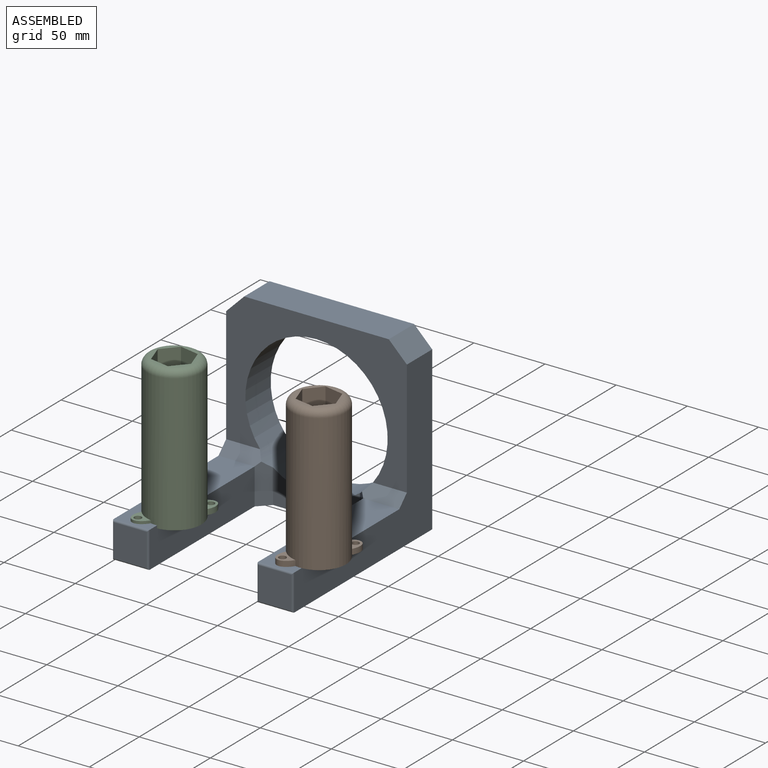
[diagram: assembled view]
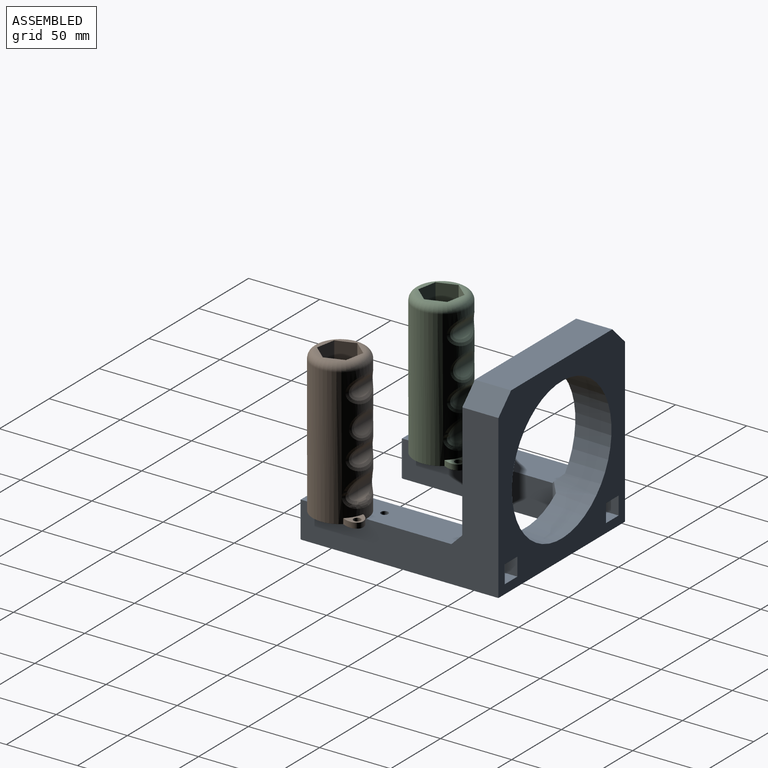
[diagram: assembled view, second angle]
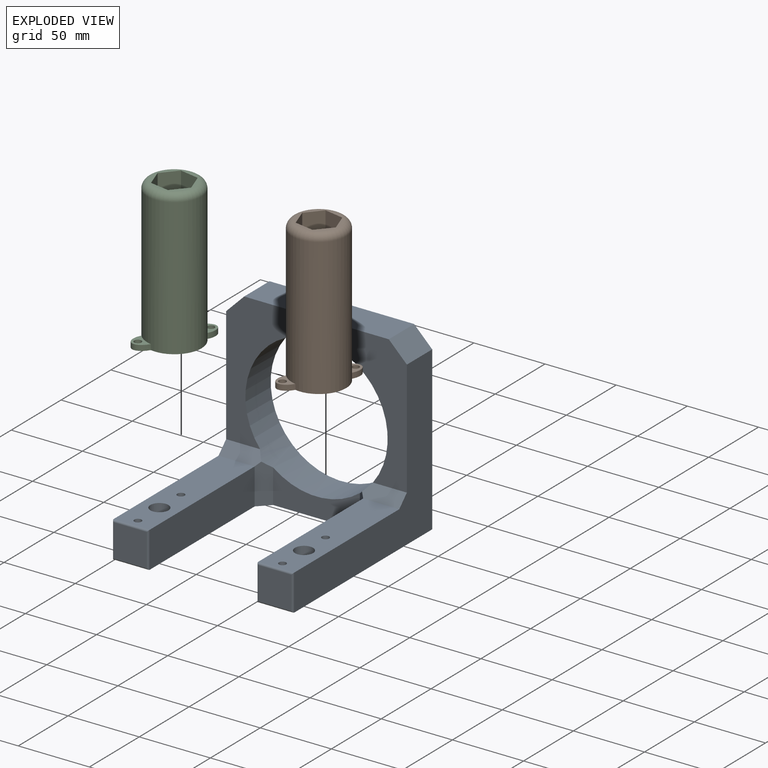
[diagram: exploded view]
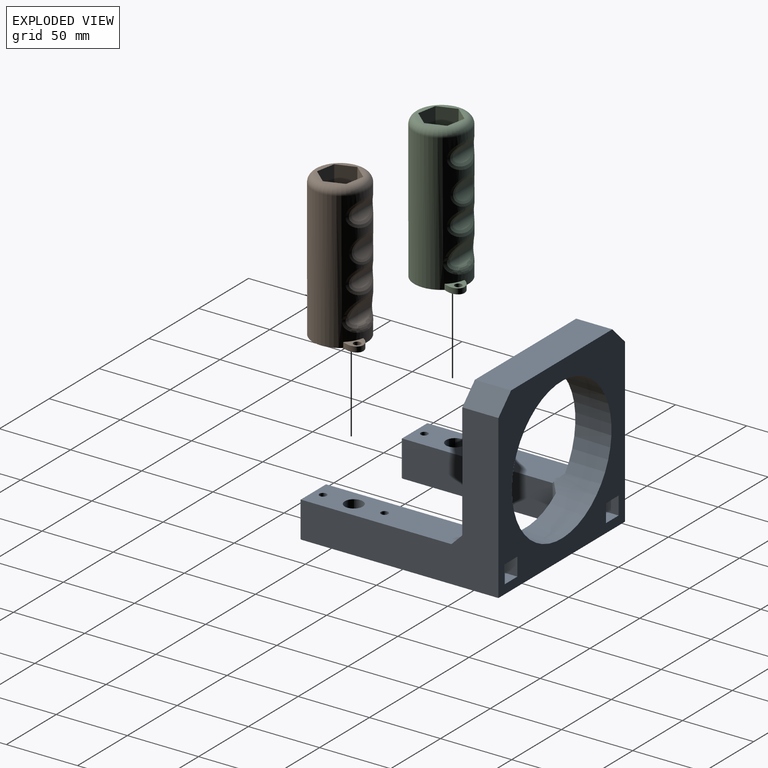
[diagram: exploded view, second angle]
ASSEMBLY  parts=3 mates=2
PART A: 46 faces, bbox 127x127x139.7 mm
  f0: plane 127x127mm, normal (0,0,-1), area 7791.1mm2, adj f7,f8,f9,f10,f11,f32,f33,f34
  f1: plane 22.86x22.86mm, normal (0,0,1), area 522.6mm2, adj f28,f29,f30,f31
  f2: cylinder r=2.54mm len=6.35mm, axis (0,1,0), area 101.3mm2, adj f13,f35
  f3: cylinder r=2.54mm len=6.35mm, axis (0,1,0), area 101.3mm2, adj f13,f36
  f4: cylinder r=6.35mm len=12.7mm, axis (0,1,0), area 253.4mm2, adj f13,f35,f36
  f5: plane 60.96x23.86mm, normal (0,0,1), area 1024mm2, adj f10,f11,f21,f22
  f6: plane 127x93.98mm, normal (0,0,1), area 5000.2mm2, adj f7,f8,f9,f11,f20,f23,f32,f33
  f7: plane 138.43x114.3mm, normal (1,0,0), area 5803.2mm2, adj f0,f6,f10,f13,f20,f27,f32
  f8: plane 101.6x25.4mm, normal (0,1,0), area 2580.6mm2, adj f0,f6,f32,f33
  f9: plane 138.43x114.3mm, normal (-1,0,0), area 5803.2mm2, adj f0,f6,f10,f16,f23,f30,f33
  f10: plane 138.43x127mm, normal (0,-1,0), area 9025.8mm2, adj f0,f5,f7,f9,f12,f15,f21,f22
  f11: cylinder r=50mm len=100mm, axis (0,0,-1), area 8044.2mm2, adj f0,f5,f6,f20,f21,f22,f23
  f12: plane 105.41x25.4mm, normal (-1,0,0), area 2677.4mm2, adj f10,f13,f21,f24
  f13: plane 105.41x25.4mm, normal (0,1,0), area 2510.2mm2, adj f2,f3,f4,f7,f12,f20,f25
  f14: plane 22.86x22.86mm, normal (0,0,1), area 522.6mm2, adj f24,f25,f26,f27
  f15: plane 105.41x25.4mm, normal (1,0,0), area 2677.4mm2, adj f10,f16,f22,f29
  f16: plane 105.41x25.4mm, normal (0,1,0), area 2510.2mm2, adj f9,f15,f17,f18,f19,f23,f31
  f17: cylinder r=2.54mm len=6.35mm, axis (0,1,0), area 101.3mm2, adj f16,f40
  f18: cylinder r=2.54mm len=6.35mm, axis (0,1,0), area 101.3mm2, adj f16,f43
  f19: cylinder r=6.35mm len=12.7mm, axis (0,1,0), area 253.4mm2, adj f16,f40,f43
  f20: plane 28.14x7.62mm, normal (0,0.71,0.71), area 282.6mm2, adj f6,f7,f11,f13,f21
  f21: plane 28.14x7.62mm, normal (-0.71,0,0.71), area 282.6mm2, adj f5,f10,f11,f12,f20
  f22: plane 28.14x7.62mm, normal (0.71,0,0.71), area 282.6mm2, adj f5,f10,f11,f15,f23
  f23: plane 28.14x7.62mm, normal (0,0.71,0.71), area 282.6mm2, adj f6,f9,f11,f16,f22
  f24: cylinder r=1.27mm len=25.4mm, axis (0,1,0), area 48.8mm2, adj f12,f14,f25,f26
  f25: cylinder r=1.27mm len=25.4mm, axis (1,0,0), area 48.8mm2, adj f13,f14,f24,f27
  f26: cylinder r=1.27mm len=25.4mm, axis (-1,0,0), area 48.8mm2, adj f10,f14,f24,f27
  f27: cylinder r=1.27mm len=25.4mm, axis (0,-1,0), area 48.8mm2, adj f7,f14,f25,f26
  f28: cylinder r=1.27mm len=25.4mm, axis (-1,0,0), area 48.8mm2, adj f1,f10,f29,f30
  f29: cylinder r=1.27mm len=25.4mm, axis (0,-1,0), area 48.8mm2, adj f1,f15,f28,f31
  f30: cylinder r=1.27mm len=25.4mm, axis (0,1,0), area 48.8mm2, adj f1,f9,f28,f31
  f31: cylinder r=1.27mm len=25.4mm, axis (1,0,0), area 48.8mm2, adj f1,f16,f29,f30
  f32: plane 25.4x12.7mm, normal (0.71,0.71,0), area 456.2mm2, adj f0,f6,f7,f8
  f33: plane 25.4x12.7mm, normal (-0.71,0.71,0), area 456.2mm2, adj f0,f6,f8,f9
  f34: plane 134.62x12.7mm, normal (0,1,0), area 1709.7mm2, adj f0,f37,f38,f45
  f35: plane 110.49x12.7mm, normal (0,-1,0), area 1319.6mm2, adj f0,f2,f4,f37,f38
  f36: plane 24.13x12.7mm, normal (0,-1,0), area 222.8mm2, adj f3,f4,f37,f38,f45
  f37: plane 134.62x12.7mm, normal (-1,0,0), area 1709.7mm2, adj f0,f34,f35,f36,f45
  f38: plane 134.62x12.7mm, normal (1,0,0), area 1709.7mm2, adj f0,f34,f35,f36,f45
  f39: plane 134.62x12.7mm, normal (0,1,0), area 1709.7mm2, adj f0,f41,f42,f44
  f40: plane 110.49x12.7mm, normal (0,-1,0), area 1319.6mm2, adj f0,f17,f19,f41,f42
  f41: plane 134.62x12.7mm, normal (-1,0,0), area 1709.7mm2, adj f0,f39,f40,f43,f44
  f42: plane 134.62x12.7mm, normal (1,0,0), area 1709.7mm2, adj f0,f39,f40,f43,f44
  f43: plane 24.13x12.7mm, normal (0,-1,0), area 222.8mm2, adj f18,f19,f41,f42,f44
  f44: plane 12.7x12.7mm, normal (0,0,-1), area 161.3mm2, adj f39,f41,f42,f43
  f45: plane 12.7x12.7mm, normal (0,0,-1), area 161.3mm2, adj f34,f36,f37,f38
PART B: 31 faces, bbox 48.5x41.2x101.6 mm
  f0: plane 27.94x27.94mm, normal (0,0,1), area 114.3mm2, adj f16,f23,f24,f25,f26,f27,f28
  f1: cylinder r=19.05mm len=96.52mm, axis (0,0,-1), area 9549.9mm2, adj f2,f8,f12,f13,f14,f15,f16,f17
  f2: plane 48.47x38.1mm, normal (0,0,-1), area 1139.8mm2, adj f1,f17,f19,f21,f22,f30
  f3: cylinder r=7.37mm len=19.94mm, axis (0,-1,0), area 197.8mm2, adj f15
  f4: cylinder r=11.42mm len=17.72mm, axis (0,-1,0), area 202.6mm2, adj f14
  f5: cylinder r=7.11mm len=19.92mm, axis (0,-1,0), area 192.6mm2, adj f13
  f6: cylinder r=5.65mm len=22.04mm, axis (0,-1,0), area 136.9mm2, adj f9,f12
  f7: cylinder r=17mm len=21.45mm, axis (0,-1,0), area 142.7mm2, adj f8,f9
  f8: bspline ~29.63x12.08mm, area 141mm2, adj f1,f7,f10,f11
  f9: cylinder r=5.08mm len=21.45mm, axis (0,-1,0), area 6.7mm2, adj f6,f7,f10,f11
  f10: sphere r=5.08mm, area 0.9mm2, adj f8,f9,f12
  f11: sphere r=5.08mm, area 0.9mm2, adj f8,f9,f12
  f12: bspline ~30.06x13.69mm, area 190.8mm2, adj f1,f6,f10,f11
  f13: bspline ~27.17x18.38mm, area 264.1mm2, adj f1,f5
  f14: bspline ~24.16x19.45mm, area 201.4mm2, adj f1,f4
  f15: bspline ~27.19x18.62mm, area 264.3mm2, adj f1,f3
  f16: torus R=13.97mm, axis (0,0,1), area 862.6mm2, adj f0,f1
  f17: extruded ~12.68x11.85mm, area 94.6mm2, adj f1,f2,f18
  f18: plane 12.68x11.86mm, normal (0,0,1), area 63.2mm2, adj f1,f17,f21
  f19: extruded ~12.68x11.85mm, area 94.6mm2, adj f1,f2,f20
  f20: plane 12.68x11.86mm, normal (0,0,1), area 63.2mm2, adj f1,f19,f22
  f21: cylinder r=2.54mm len=5.08mm, axis (0,0,-1), area 60.8mm2, adj f2,f18
  f22: cylinder r=2.54mm len=5.08mm, axis (0,0,-1), area 60.8mm2, adj f2,f20
  f23: plane 63.5x13.09mm, normal (0.33,-0.94,0), area 879.9mm2, adj f0,f24,f28,f29
  f24: plane 63.5x13.61mm, normal (0.98,-0.19,0), area 879.9mm2, adj f0,f23,f25,f29
  f25: plane 63.5x10.48mm, normal (0.65,0.76,0), area 879.9mm2, adj f0,f24,f26,f29
  f26: plane 63.5x13.09mm, normal (-0.33,0.94,0), area 879.9mm2, adj f0,f25,f27,f29
  f27: plane 63.5x13.61mm, normal (-0.98,0.19,0), area 879.9mm2, adj f0,f26,f28,f29
  f28: plane 63.5x10.48mm, normal (-0.65,-0.76,0), area 879.9mm2, adj f0,f23,f27,f29
  f29: plane 27.22x26.18mm, normal (0,0,1), area 372.2mm2, adj f23,f24,f25,f26,f27,f28,f30
  f30: cylinder r=6.35mm len=38.1mm, axis (0,0,-1), area 1520.1mm2, adj f2,f29
PART C: same geometry as B
PLACE A rot(axis=(1,0,0),90deg) t=(-33.09,121.96,-9.66)mm
PLACE B rot(axis=(0,0,-1),90deg) t=(29.3,9.95,-47.76)mm
PLACE C rot(axis=(0,0,-1),90deg) t=(-72.3,9.95,-49.67)mm
MATE fastened C.f22 <-> A.f18  axis (0,0,-1) through (-83.89,-10.12,-47.76)mm
MATE fastened B.f22 <-> A.f3  axis (0,0,-1) through (17.71,-10.12,-47.76)mm
